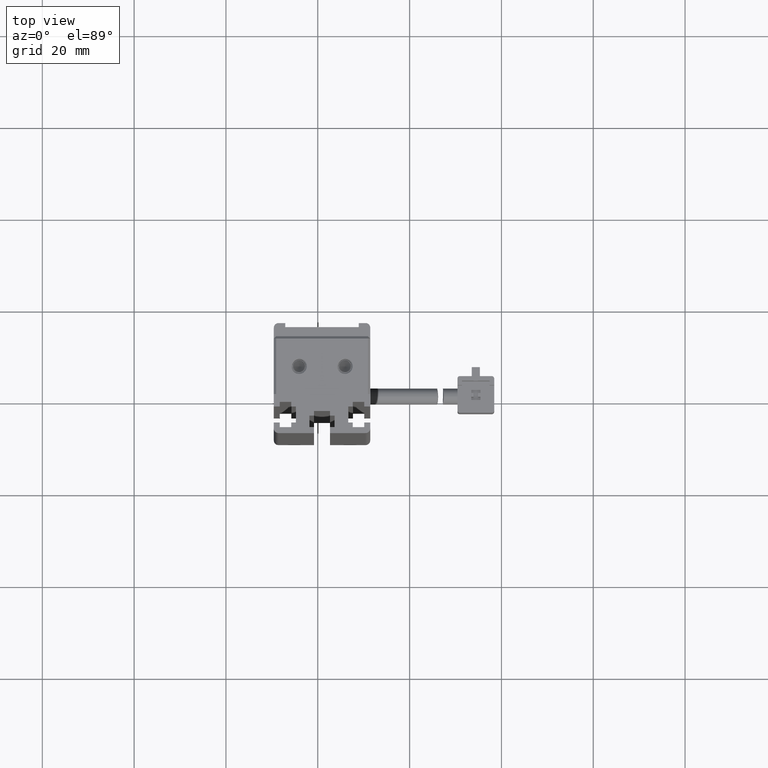
[diagram: clean part render]
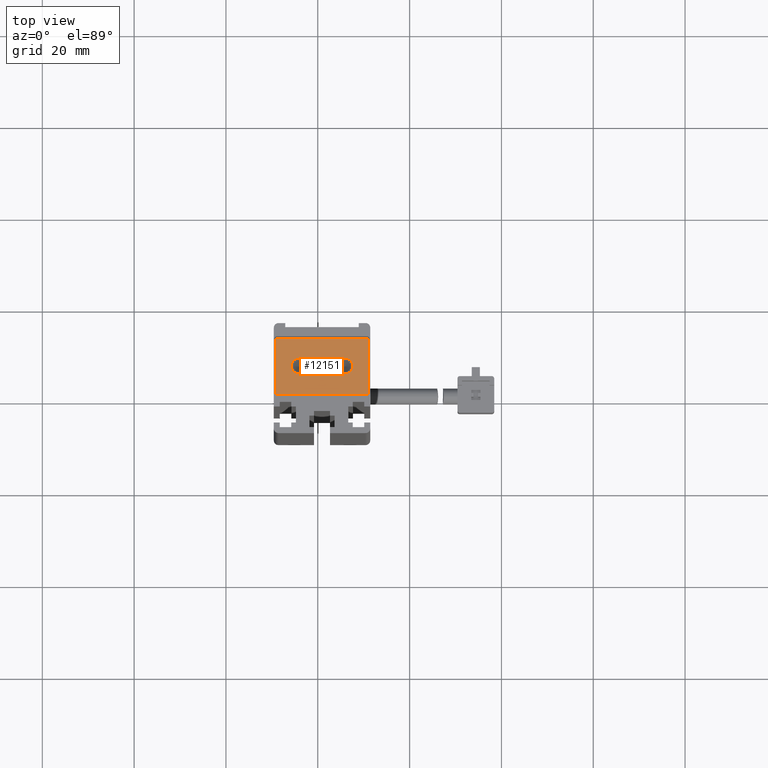
[diagram: same view with one face highlighted and labeled with its STEP entity id]
A machine part, top view. The second image highlights one B-rep face of the part: STEP entity #12151.
In plain terms, the highlighted planar face has unit normal (0, 0, 1).
Its self-contained STEP definition (entity closure, byte-faithful):
#21 = DIRECTION ( 'NONE',  ( -1.000000000000000000, -0.0000000000000000000, -0.0000000000000000000 ) ) ;
#829 = ORIENTED_EDGE ( 'NONE', *, *, #17612, .T. ) ;
#849 = EDGE_LOOP ( 'NONE', ( #27224, #21209, #16759, #24156 ) ) ;
#2140 = DIRECTION ( 'NONE',  ( 1.000000000000000000, 0.0000000000000000000, 0.0000000000000000000 ) ) ;
#2513 = AXIS2_PLACEMENT_3D ( 'NONE', #19836, #19556, #29273 ) ;
#2678 = LINE ( 'NONE', #12746, #36283 ) ;
#3275 = EDGE_CURVE ( 'NONE', #22099, #20647, #39830, .T. ) ;
#3279 = VERTEX_POINT ( 'NONE', #12459 ) ;
#3357 = EDGE_CURVE ( 'NONE', #7967, #3279, #7681, .T. ) ;
#3367 = CARTESIAN_POINT ( 'NONE',  ( 35.92537974683541800, 25.59073232304836800, -40.00000000000000700 ) ) ;
#4437 = DIRECTION ( 'NONE',  ( -0.0000000000000000000, -1.000000000000000000, -0.0000000000000000000 ) ) ;
#6471 = CARTESIAN_POINT ( 'NONE',  ( 40.92537974683541800, 31.59073232304836100, -40.00000000000000700 ) ) ;
#6561 = FACE_BOUND ( 'NONE', #6704, .T. ) ;
#6704 = EDGE_LOOP ( 'NONE', ( #829, #14310 ) ) ;
#7528 = LINE ( 'NONE', #6471, #42160 ) ;
#7681 = CIRCLE ( 'NONE', #18246, 1.699999999975714000 ) ;
#7827 = CARTESIAN_POINT ( 'NONE',  ( 34.22537974685970900, 25.59073232304836800, -40.00000000000000700 ) ) ;
#7967 = VERTEX_POINT ( 'NONE', #7827 ) ;
#8611 = VERTEX_POINT ( 'NONE', #28477 ) ;
#9000 = ORIENTED_EDGE ( 'NONE', *, *, #3275, .T. ) ;
#10971 = DIRECTION ( 'NONE',  ( 1.000000000000000000, 0.0000000000000000000, 0.0000000000000000000 ) ) ;
#12151 = ADVANCED_FACE ( 'NONE', ( #40757, #32575, #6561 ), #27778, .T. ) ;
#12459 = CARTESIAN_POINT ( 'NONE',  ( 37.62537974681113400, 25.59073232304836800, -40.00000000000000700 ) ) ;
#12746 = CARTESIAN_POINT ( 'NONE',  ( 50.92537974683541800, 25.79073232304837000, -40.00000000000000700 ) ) ;
#12834 = AXIS2_PLACEMENT_3D ( 'NONE', #22517, #41676, #25371 ) ;
#14205 = CARTESIAN_POINT ( 'NONE',  ( 30.92537974683542100, 25.79073232304837000, -40.00000000000000700 ) ) ;
#14310 = ORIENTED_EDGE ( 'NONE', *, *, #3357, .T. ) ;
#14881 = EDGE_LOOP ( 'NONE', ( #9000, #39962 ) ) ;
#15861 = EDGE_CURVE ( 'NONE', #31784, #8611, #7528, .T. ) ;
#16759 = ORIENTED_EDGE ( 'NONE', *, *, #28909, .T. ) ;
#16826 = CARTESIAN_POINT ( 'NONE',  ( 30.92537974683541800, 19.49073232304837000, -40.00000000000000700 ) ) ;
#17033 = VECTOR ( 'NONE', #4437, 1000.000000000000000 ) ;
#17612 = EDGE_CURVE ( 'NONE', #3279, #7967, #34254, .T. ) ;
#18246 = AXIS2_PLACEMENT_3D ( 'NONE', #3367, #29441, #39236 ) ;
#18573 = AXIS2_PLACEMENT_3D ( 'NONE', #20558, #33796, #10971 ) ;
#18909 = DIRECTION ( 'NONE',  ( 1.000000000000000000, 0.0000000000000000000, 0.0000000000000000000 ) ) ;
#19556 = DIRECTION ( 'NONE',  ( -0.0000000000000000000, -0.0000000000000000000, -1.000000000000000000 ) ) ;
#19836 = CARTESIAN_POINT ( 'NONE',  ( 35.92537974683541800, 25.59073232304836800, -40.00000000000000700 ) ) ;
#20558 = CARTESIAN_POINT ( 'NONE',  ( 45.92537974683541800, 25.59073232304837100, -40.00000000005685100 ) ) ;
#20571 = VECTOR ( 'NONE', #2140, 1000.000000000000000 ) ;
#20647 = VERTEX_POINT ( 'NONE', #39013 ) ;
#21209 = ORIENTED_EDGE ( 'NONE', *, *, #28581, .T. ) ;
#22099 = VERTEX_POINT ( 'NONE', #22682 ) ;
#22144 = LINE ( 'NONE', #34623, #20571 ) ;
#22228 = LINE ( 'NONE', #14205, #17033 ) ;
#22517 = CARTESIAN_POINT ( 'NONE',  ( 40.92537974683541800, 25.79073232304837000, -40.00000000000000700 ) ) ;
#22682 = CARTESIAN_POINT ( 'NONE',  ( 47.62537974680203900, 25.59073232304837100, -40.00000000005685100 ) ) ;
#23066 = CARTESIAN_POINT ( 'NONE',  ( 50.92537974683541800, 31.59073232304836800, -40.00000000000000700 ) ) ;
#24156 = ORIENTED_EDGE ( 'NONE', *, *, #35467, .T. ) ;
#25371 = DIRECTION ( 'NONE',  ( 1.000000000000000000, 0.0000000000000000000, 0.0000000000000000000 ) ) ;
#25530 = AXIS2_PLACEMENT_3D ( 'NONE', #32315, #25932, #18909 ) ;
#25823 = DIRECTION ( 'NONE',  ( 0.0000000000000000000, 1.000000000000000000, 0.0000000000000000000 ) ) ;
#25932 = DIRECTION ( 'NONE',  ( -0.0000000000000000000, -0.0000000000000000000, -1.000000000000000000 ) ) ;
#27224 = ORIENTED_EDGE ( 'NONE', *, *, #15861, .T. ) ;
#27778 = PLANE ( 'NONE',  #12834 ) ;
#28477 = CARTESIAN_POINT ( 'NONE',  ( 30.92537974683542100, 31.59073232304836100, -40.00000000000000700 ) ) ;
#28581 = EDGE_CURVE ( 'NONE', #8611, #37780, #22228, .T. ) ;
#28909 = EDGE_CURVE ( 'NONE', #37780, #41803, #22144, .T. ) ;
#29273 = DIRECTION ( 'NONE',  ( 1.000000000000000000, 0.0000000000000000000, 0.0000000000000000000 ) ) ;
#29441 = DIRECTION ( 'NONE',  ( -0.0000000000000000000, -0.0000000000000000000, -1.000000000000000000 ) ) ;
#31784 = VERTEX_POINT ( 'NONE', #23066 ) ;
#32315 = CARTESIAN_POINT ( 'NONE',  ( 45.92537974683541800, 25.59073232304837100, -40.00000000005685100 ) ) ;
#32575 = FACE_BOUND ( 'NONE', #14881, .T. ) ;
#32620 = CIRCLE ( 'NONE', #18573, 1.699999999966624000 ) ;
#33796 = DIRECTION ( 'NONE',  ( -0.0000000000000000000, -0.0000000000000000000, -1.000000000000000000 ) ) ;
#34254 = CIRCLE ( 'NONE', #2513, 1.699999999975714000 ) ;
#34623 = CARTESIAN_POINT ( 'NONE',  ( 40.92537974683541800, 19.49073232304837000, -40.00000000000000700 ) ) ;
#35467 = EDGE_CURVE ( 'NONE', #41803, #31784, #2678, .T. ) ;
#35804 = CARTESIAN_POINT ( 'NONE',  ( 50.92537974683541800, 19.49073232304837000, -40.00000000000000700 ) ) ;
#36283 = VECTOR ( 'NONE', #25823, 1000.000000000000000 ) ;
#37780 = VERTEX_POINT ( 'NONE', #16826 ) ;
#39013 = CARTESIAN_POINT ( 'NONE',  ( 44.22537974686878900, 25.59073232304837100, -40.00000000005685100 ) ) ;
#39236 = DIRECTION ( 'NONE',  ( 1.000000000000000000, 0.0000000000000000000, 0.0000000000000000000 ) ) ;
#39830 = CIRCLE ( 'NONE', #25530, 1.699999999966624000 ) ;
#39962 = ORIENTED_EDGE ( 'NONE', *, *, #41979, .T. ) ;
#40757 = FACE_OUTER_BOUND ( 'NONE', #849, .T. ) ;
#41676 = DIRECTION ( 'NONE',  ( 0.0000000000000000000, 0.0000000000000000000, 1.000000000000000000 ) ) ;
#41803 = VERTEX_POINT ( 'NONE', #35804 ) ;
#41979 = EDGE_CURVE ( 'NONE', #20647, #22099, #32620, .T. ) ;
#42160 = VECTOR ( 'NONE', #21, 1000.000000000000000 ) ;